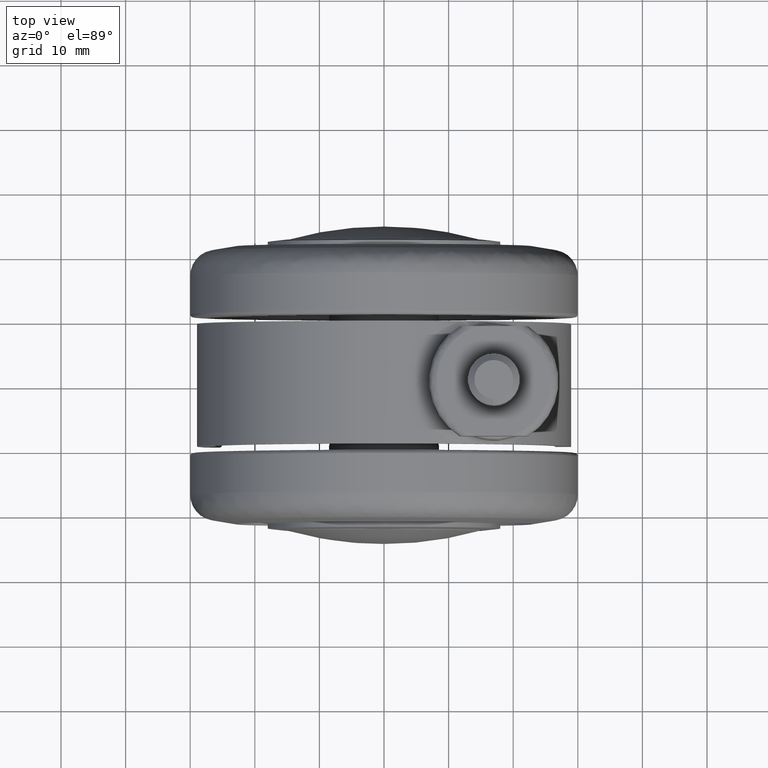
[diagram: clean part render]
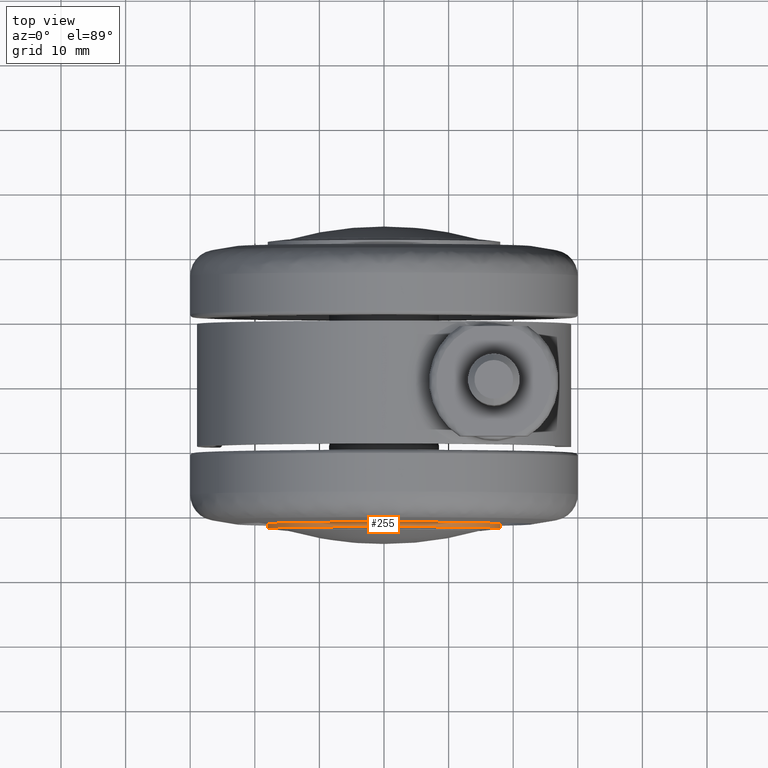
[diagram: same view with one face highlighted and labeled with its STEP entity id]
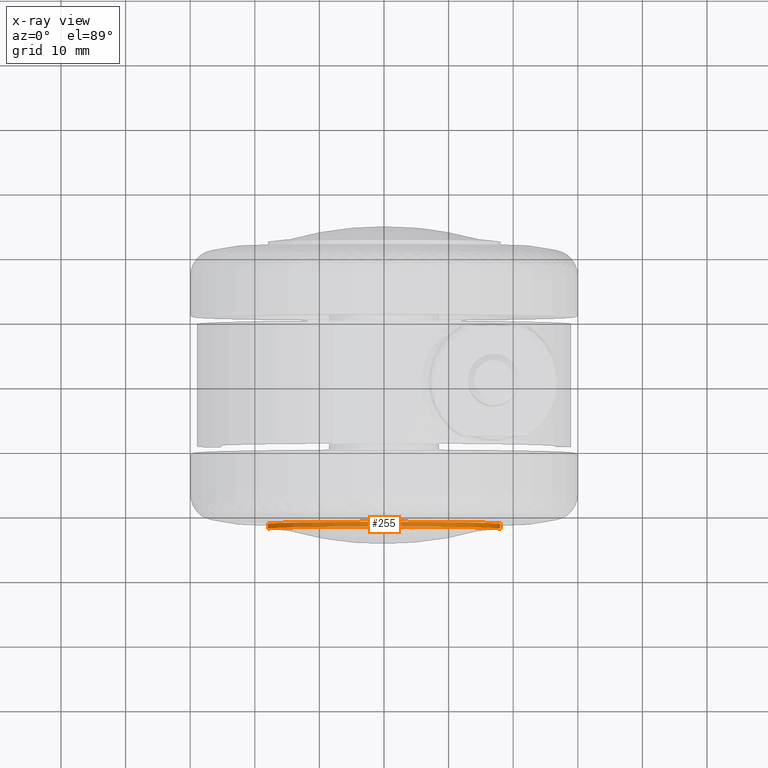
[diagram: x-ray of the same camera — body ghosted, the highlighted face saturated]
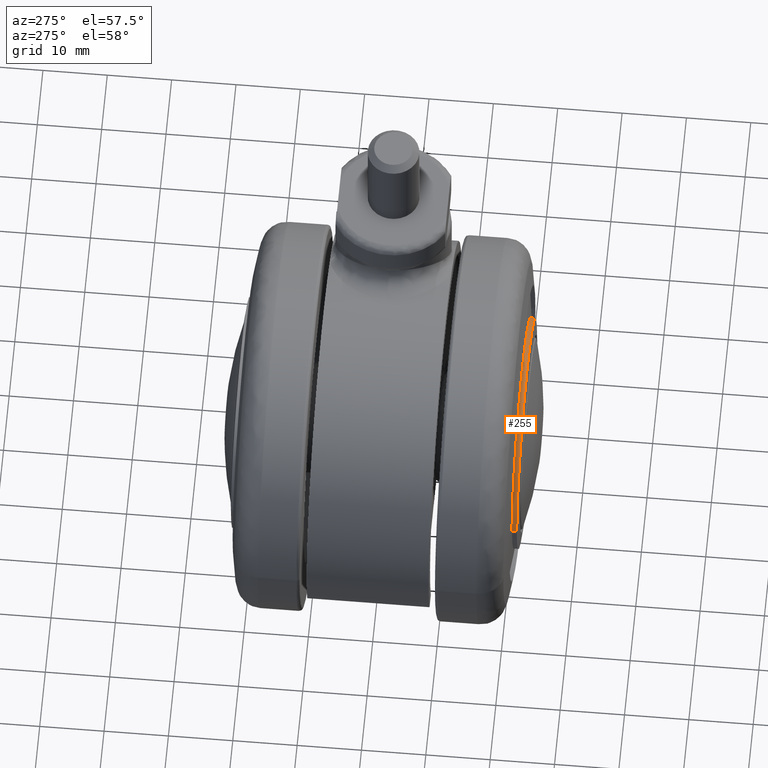
[diagram: same view with one face highlighted and labeled with its STEP entity id]
A machine part, top view. The second image highlights one B-rep face of the part: STEP entity #255.
The next image is the same camera in x-ray: the body ghosted, the highlighted face saturated — about 0% of this face is hidden behind the body in this view.
A second angle (auxiliary view) of the same face is appended — the face is thin or edge-on in the first view.
In plain terms, the highlighted cylindrical surface (partial cylindrical patch) has radius 18 mm, axis along (-0, 1, -0).
Its self-contained STEP definition (entity closure, byte-faithful):
#255=ADVANCED_FACE('',(#1292),#1291,.T.);
#1291=CYLINDRICAL_SURFACE('',#3916,1.80000000000E+01);
#1292=FACE_OUTER_BOUND('',#3917,.T.);
#3913=CARTESIAN_POINT('',(0.00000000000E+00,0.00000000000E+00,1.33366808891E+01));
#3914=DIRECTION('',(-0.00000000000E+00,-0.00000000000E+00,-1.00000000000E+00));
#3915=DIRECTION('',(-1.00000000000E+00,-0.00000000000E+00,-0.00000000000E+00));
#3916=AXIS2_PLACEMENT_3D('',#3913,#3914,#3915);
#3917=EDGE_LOOP('',(#4971,#4972,#4973,#4974));
#4971=ORIENTED_EDGE('',*,*,#5442,.T.);
#4972=ORIENTED_EDGE('',*,*,#5476,.F.);
#4973=ORIENTED_EDGE('',*,*,#5444,.F.);
#4974=ORIENTED_EDGE('',*,*,#5477,.T.);
#5442=EDGE_CURVE('',#7066,#7058,#7067,.T.);
#5444=EDGE_CURVE('',#7079,#7080,#7081,.T.);
#5476=EDGE_CURVE('',#7080,#7058,#7286,.T.);
#5477=EDGE_CURVE('',#7079,#7066,#7292,.T.);
#7058=VERTEX_POINT('',#9261);
#7066=VERTEX_POINT('',#9267);
#7067=CIRCLE('',#9271,1.80000000000E+01);
#7079=VERTEX_POINT('',#9276);
#7080=VERTEX_POINT('',#9277);
#7081=CIRCLE('',#9281,1.80000000000E+01);
#7286=(BOUNDED_CURVE() B_SPLINE_CURVE(1,(#9409,#9410),.UNSPECIFIED.,.F.,.F.) B_SPLINE_CURVE_WITH_KNOTS((2,2),(8.33332935974E-02,9.16666633252E-01),.UNSPECIFIED.) CURVE() GEOMETRIC_REPRESENTATION_ITEM() RATIONAL_B_SPLINE_CURVE((1.00000000000E+00,1.00000000000E+00)) REPRESENTATION_ITEM('') );
#7292=(BOUNDED_CURVE() B_SPLINE_CURVE(1,(#9411,#9412),.UNSPECIFIED.,.F.,.F.) B_SPLINE_CURVE_WITH_KNOTS((2,2),(8.33333333333E-02,9.16666666667E-01),.UNSPECIFIED.) CURVE() GEOMETRIC_REPRESENTATION_ITEM() RATIONAL_B_SPLINE_CURVE((7.50000000000E-01,7.50000000000E-01)) REPRESENTATION_ITEM('') );
#9261=CARTESIAN_POINT('',(-1.80000000000E+01,-9.85225253705E-11,1.29672780874E+01));
#9267=CARTESIAN_POINT('',(1.79999999031E+01,1.86805382371E-03,1.29672780874E+01));
#9268=CARTESIAN_POINT('',(0.00000000000E+00,0.00000000000E+00,1.29672780874E+01));
#9269=DIRECTION('',(0.00000000000E+00,-0.00000000000E+00,1.00000000000E+00));
#9270=DIRECTION('',(-0.00000000000E+00,-1.00000000000E+00,-0.00000000000E+00));
#9271=AXIS2_PLACEMENT_3D('',#9268,#9269,#9270);
#9276=CARTESIAN_POINT('',(1.80000000000E+01,-4.40865567535E-15,1.37060837519E+01));
#9277=CARTESIAN_POINT('',(-1.80000000000E+01,1.18423789293E-15,1.37060837519E+01));
#9278=CARTESIAN_POINT('',(0.00000000000E+00,0.00000000000E+00,1.37060837519E+01));
#9279=DIRECTION('',(0.00000000000E+00,0.00000000000E+00,1.00000000000E+00));
#9280=DIRECTION('',(1.00000000000E+00,-1.22464679915E-16,-0.00000000000E+00));
#9281=AXIS2_PLACEMENT_3D('',#9278,#9279,#9280);
#9409=CARTESIAN_POINT('',(-1.80000000000E+01,0.00000000000E+00,1.37060837871E+01));
#9410=CARTESIAN_POINT('',(-1.80000000000E+01,0.00000000000E+00,1.29672781171E+01));
#9411=CARTESIAN_POINT('',(1.80000000000E+01,-1.18423789293E-15,1.37060837519E+01));
#9412=CARTESIAN_POINT('',(1.80000000000E+01,-1.18423789293E-15,1.29672780874E+01));